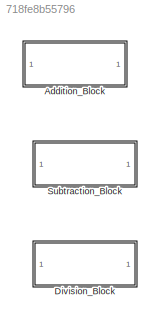
MODEL slx_718fe8b55796
KIND library
CONFIG AbsTol = auto
CONFIG EnableMultiTasking = off
CONFIG FixedStep = auto
CONFIG MaxStep = auto
CONFIG MinStep = auto
CONFIG RelTol = 1e-3
CONFIG SampleTimeConstraint = Unconstrained
CONFIG Solver = VariableStepAuto
CONFIG SolverName = VariableStepAuto
CONFIG StartTime = 0.0
CONFIG StopTime = 10.0
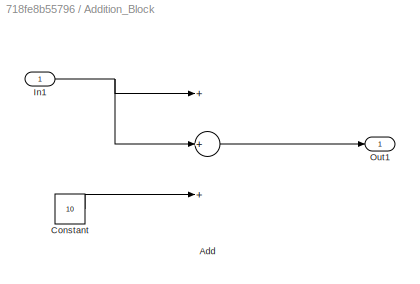
BLOCK [SubSystem] Addition_Block
  Ports = [1, 1]
  RequestExecContextInheritance = off
BLOCK [Sum] Addition_Block/Add
  InputSameDT = off
  Inputs = +++
  OutDataTypeStr = Inherit: Inherit via internal rule
  Ports = [3, 1]
  SaturateOnIntegerOverflow = off
BLOCK [Constant] Addition_Block/Constant
  OutDataTypeStr = double
  Value = 10
BLOCK [Inport] Addition_Block/In1
  IconDisplay = Port number
BLOCK [Outport] Addition_Block/Out1
  IconDisplay = Port number
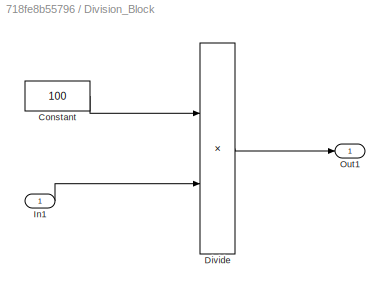
BLOCK [SubSystem] Division_Block
  Ports = [1, 1]
  RequestExecContextInheritance = off
BLOCK [Constant] Division_Block/Constant
  OutDataTypeStr = double
  Value = 100
BLOCK [Product] Division_Block/Divide
  InputSameDT = off
  Inputs = */
  OutDataTypeStr = Inherit: Inherit via internal rule
  Ports = [2, 1]
  RndMeth = Floor
  SaturateOnIntegerOverflow = off
BLOCK [Inport] Division_Block/In1
  IconDisplay = Port number
BLOCK [Outport] Division_Block/Out1
  IconDisplay = Port number
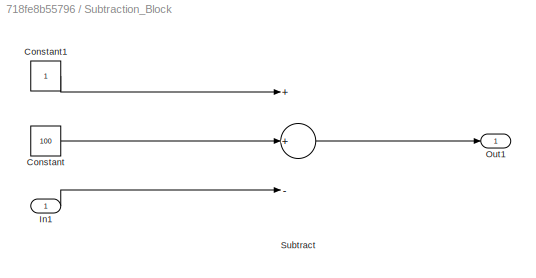
BLOCK [SubSystem] Subtraction_Block
  Ports = [1, 1]
  RequestExecContextInheritance = off
BLOCK [Constant] Subtraction_Block/Constant
  OutDataTypeStr = double
  Value = 100
BLOCK [Constant] Subtraction_Block/Constant1
BLOCK [Inport] Subtraction_Block/In1
  IconDisplay = Port number
BLOCK [Outport] Subtraction_Block/Out1
  IconDisplay = Port number
BLOCK [Sum] Subtraction_Block/Subtract
  InputSameDT = off
  Inputs = ++-
  OutDataTypeStr = Inherit: Inherit via internal rule
  Ports = [3, 1]
  SaturateOnIntegerOverflow = off
LINE Addition_Block/Add:1 -> Addition_Block/Out1:1
LINE Addition_Block/Constant:1 -> Addition_Block/Add:3
NET Addition_Block/In1:1 -> Addition_Block/Add:1, Addition_Block/Add:2
LINE Division_Block/Constant:1 -> Division_Block/Divide:1
LINE Division_Block/Divide:1 -> Division_Block/Out1:1
LINE Division_Block/In1:1 -> Division_Block/Divide:2
LINE Subtraction_Block/Constant1:1 -> Subtraction_Block/Subtract:1
LINE Subtraction_Block/Constant:1 -> Subtraction_Block/Subtract:2
LINE Subtraction_Block/In1:1 -> Subtraction_Block/Subtract:3
LINE Subtraction_Block/Subtract:1 -> Subtraction_Block/Out1:1
note: NET lines group one-source signal fan-out (src -> all destinations, sorted); 1:1 wires keep LINE
